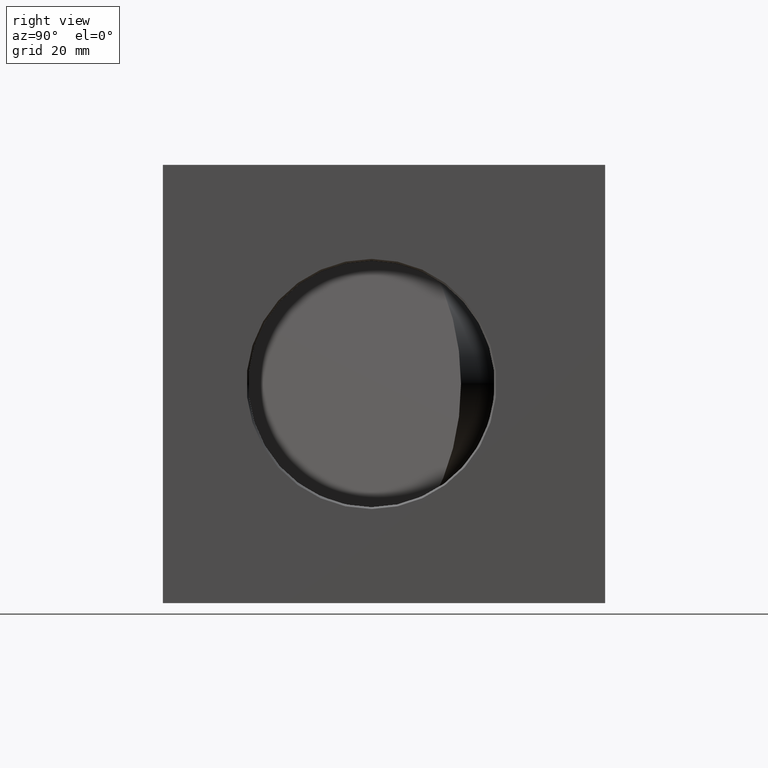
[diagram: clean part render]
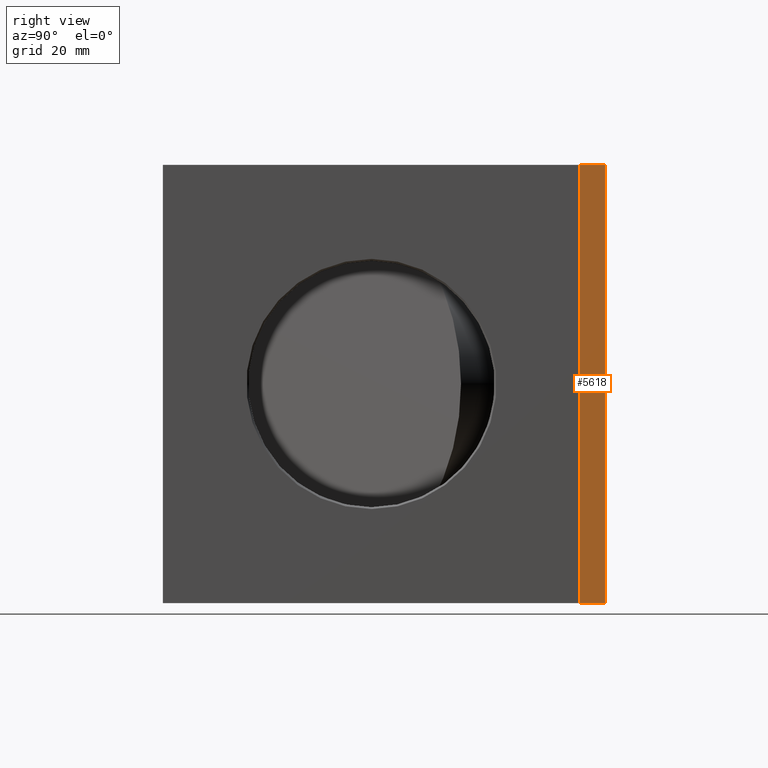
[diagram: same view with one face highlighted and labeled with its STEP entity id]
A machine part, right view. The second image highlights one B-rep face of the part: STEP entity #5618.
In plain terms, the highlighted planar face has unit normal (-1, 0, -0).
Its self-contained STEP definition (entity closure, byte-faithful):
#4351 = EDGE_CURVE ( 'NONE', #4352, #4353, #20625, .T. ) ;
#4352 = VERTEX_POINT ( 'NONE', #20621 ) ;
#4353 = VERTEX_POINT ( 'NONE', #20620 ) ;
#5548 = EDGE_CURVE ( 'NONE', #5598, #5550, #22614, .T. ) ;
#5550 = VERTEX_POINT ( 'NONE', #22610 ) ;
#5597 = EDGE_CURVE ( 'NONE', #4353, #5598, #22704, .T. ) ;
#5598 = VERTEX_POINT ( 'NONE', #22700 ) ;
#5618 = ADVANCED_FACE ( 'NONE', ( #22766 ), #22748, .F. ) ;
#5620 = ORIENTED_EDGE ( 'NONE', *, *, #5597, .F. ) ;
#5623 = ORIENTED_EDGE ( 'NONE', *, *, #4351, .F. ) ;
#5625 = ORIENTED_EDGE ( 'NONE', *, *, #5660, .F. ) ;
#5628 = ORIENTED_EDGE ( 'NONE', *, *, #5548, .F. ) ;
#5656 = EDGE_LOOP ( 'NONE', ( #5620, #5623, #5625, #5628 ) ) ;
#5660 = EDGE_CURVE ( 'NONE', #5550, #4352, #22852, .T. ) ;
#20620 = CARTESIAN_POINT ( 'NONE',  ( 3.783458390377921500, 5.162681264191444800, 0.0000000000000000000 ) ) ;
#20621 = CARTESIAN_POINT ( 'NONE',  ( 3.783458390377920200, 5.162681264191448300, 5.250000000000000000 ) ) ;
#20622 = DIRECTION ( 'NONE',  ( 2.220446049250313100E-016, -4.625435842048265000E-016, -1.000000000000000000 ) ) ;
#20623 = VECTOR ( 'NONE', #20622, 39.37007874015748100 ) ;
#20624 = CARTESIAN_POINT ( 'NONE',  ( 3.783458390377921500, 5.162681264191444800, 0.0000000000000000000 ) ) ;
#20625 = LINE ( 'NONE', #20624, #20623 ) ;
#22610 = CARTESIAN_POINT ( 'NONE',  ( 3.783458390377920200, 4.862681264191447600, 5.250000000000000000 ) ) ;
#22611 = DIRECTION ( 'NONE',  ( -2.220446049250313100E-016, 4.625435842048265000E-016, 1.000000000000000000 ) ) ;
#22612 = VECTOR ( 'NONE', #22611, 39.37007874015748100 ) ;
#22613 = CARTESIAN_POINT ( 'NONE',  ( 3.783458390377921500, 4.862681264191445000, 0.0000000000000000000 ) ) ;
#22614 = LINE ( 'NONE', #22613, #22612 ) ;
#22700 = CARTESIAN_POINT ( 'NONE',  ( 3.783458390377921500, 4.862681264191445000, 0.0000000000000000000 ) ) ;
#22701 = DIRECTION ( 'NONE',  ( 0.0000000000000000000, -1.000000000000000000, 3.885780586188047400E-016 ) ) ;
#22702 = VECTOR ( 'NONE', #22701, 39.37007874015748100 ) ;
#22703 = CARTESIAN_POINT ( 'NONE',  ( 3.783458390377921500, 5.162681264191444800, 0.0000000000000000000 ) ) ;
#22704 = LINE ( 'NONE', #22703, #22702 ) ;
#22745 = CARTESIAN_POINT ( 'NONE',  ( 3.783458390377921500, 4.862681264191445000, 0.0000000000000000000 ) ) ;
#22746 = AXIS2_PLACEMENT_3D ( 'NONE', #22745, #22798, #22797 ) ;
#22748 = PLANE ( 'NONE',  #22746 ) ;
#22766 = FACE_OUTER_BOUND ( 'NONE', #5656, .T. ) ;
#22797 = DIRECTION ( 'NONE',  ( -2.220446049250313100E-016, 4.625435842048265000E-016, 1.000000000000000000 ) ) ;
#22798 = DIRECTION ( 'NONE',  ( -1.000000000000000000, 6.152763833784681800E-017, -2.220446049250313600E-016 ) ) ;
#22849 = DIRECTION ( 'NONE',  ( 5.054934237236840700E-032, 1.000000000000000000, -6.162320580908267200E-016 ) ) ;
#22850 = VECTOR ( 'NONE', #22849, 39.37007874015748100 ) ;
#22851 = CARTESIAN_POINT ( 'NONE',  ( 3.783458390377920200, 5.162681264191448300, 5.250000000000000000 ) ) ;
#22852 = LINE ( 'NONE', #22851, #22850 ) ;